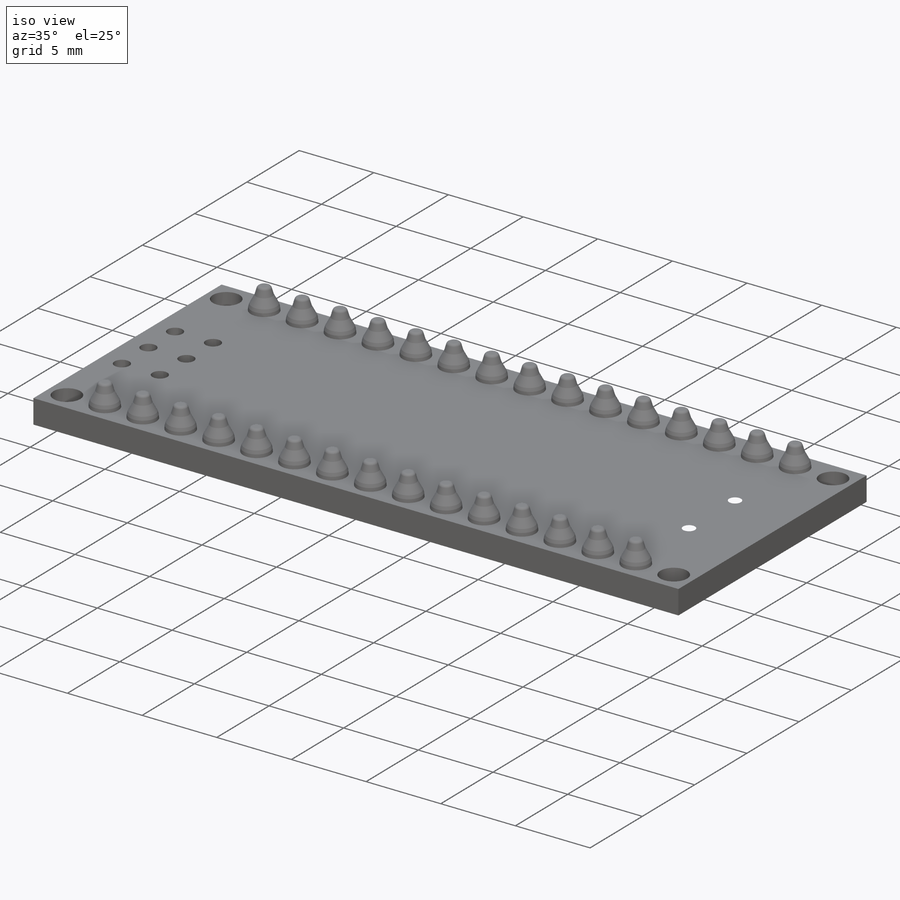
[diagram: iso view]
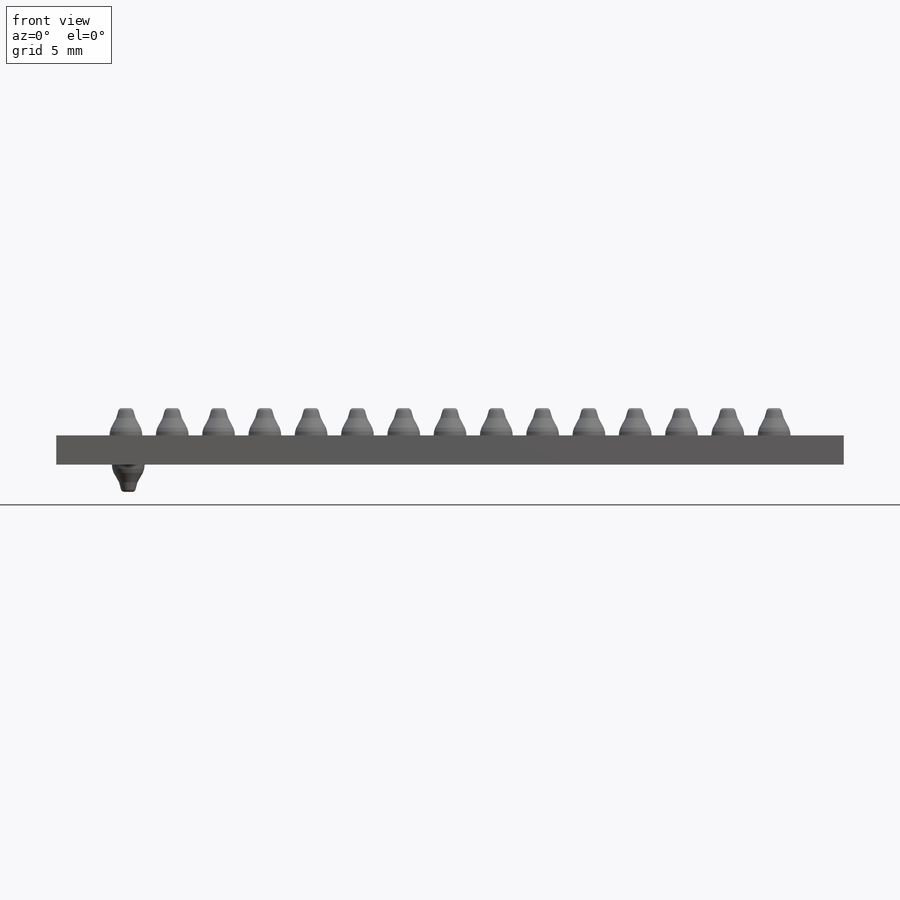
[diagram: front view]
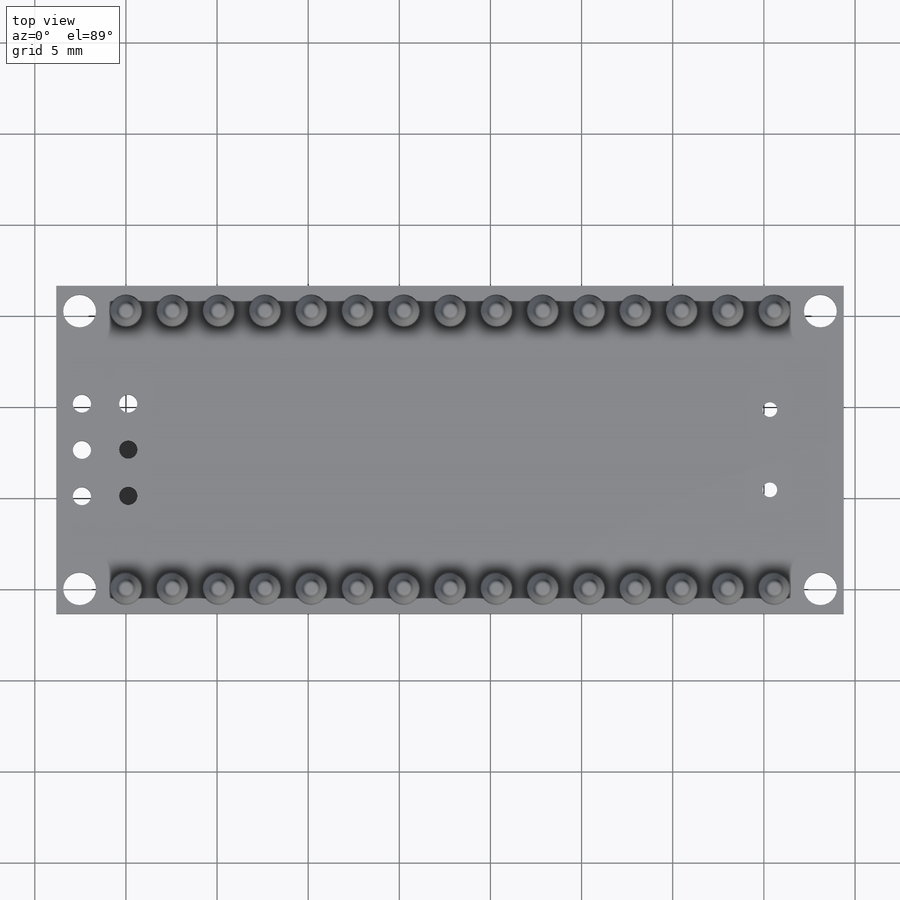
[diagram: top view]
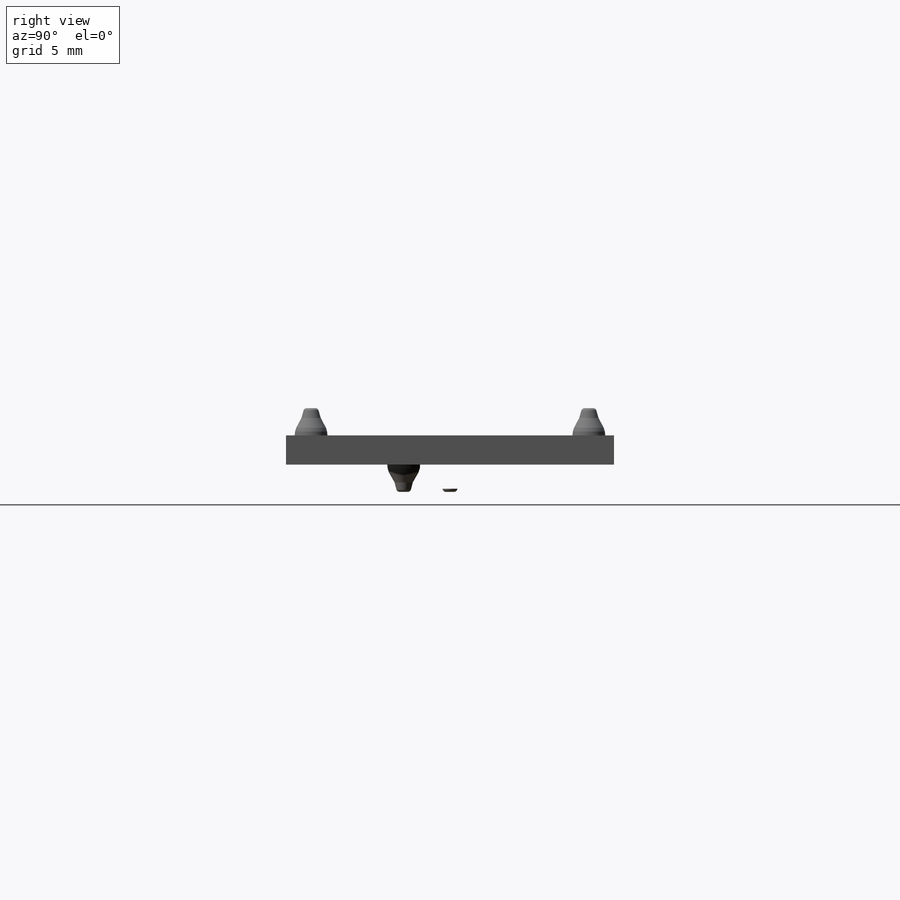
[diagram: right view]
SOLIDWORKS PART (.sldprt)
format: sldprt  version: not decoded by parser v0  size: 898,560 bytes
history: native  units: mm
features: sketch x9, cut_extrude x4, extrude x3, pattern_linear x3, revolve x2, material x1, plane x1 (+13 scaffold rows collapsed)
feature tree (36):
  scaffold x13  (default folders/planes/origin — collapsed)
  material  "E-Glass Fiber"
  sketch  "Sketch1"  dims[c1.D1=43.2mm c1.D2=18.0mm c1.D3=15.24mm c1.D4=35.56mm c1.D5=1.38mm c1.D6=43.2mm c2.D3=1.38mm c2.D6=15.24mm c3.D3=15.24mm]
  extrude  "Boss-Extrude2"  Depth=1.6mm
  sketch  "Sketch2"  dims[D1=0.9mm D2=15.24mm]
  cut_extrude  "Cut-Extrude2"  Depth=1.6mm
  pattern_linear  "LPattern1"  Count1=15 Count2=1 Spacing1=2.54mm Spacing2=10mm
  sketch  "Sketch3"  dims[c1.D1=1.0mm c1.D5=1.0mm c1.D2=2.54mm c1.D3=2.54mm c1.D4=2.54mm c2.D5=7.62mm c2.D6=2.54mm c2.D7=0.127mm]
  cut_extrude  "Cut-Extrude4"  Depth=1.6mm
  sketch  "Sketch4"  dims[D3=1.8mm D1=40.64mm D2=2.54mm D4=15.24mm D5=15.24mm]
  cut_extrude  "Cut-Extrude5"  Depth=1.6mm
  sketch  "Sketch5"  dims[D1=2.55mm D2=~2.381357mm]
  extrude  "Boss-Extrude3"  Depth=0.1mm
  sketch  "Sketch6"  dims[c1.D4=1.1mm c1.D5=1.9mm c1.D6=0.2mm c1.D1=1.5mm c1.D2=0.8mm c1.D3=1.8mm c2.D4=~0.894016mm]
  revolve  "Revolve1"  Angle=360deg
  pattern_linear  "LPattern2"  Count1=2 Count2=15 Spacing1=15.24mm Spacing2=2.54mm
  plane  "Plane3"  Offset=5.08mm
  sketch  "Sketch7"  dims[c1.D5=1.1mm c1.D6=0.2mm c1.D1=0.127mm c1.D2=1.5mm c1.D3=~0.234194mm c2.D3=90.0deg c3.D3=0.8mm c3.D4=1.8mm]
  revolve  "Revolve2"  Angle=360deg
  pattern_linear  "LPattern3"  Count1=2 Count2=3 Spacing1=2.54mm Spacing2=2.54mm
  sketch  "Sketch8"  dims[D1=2.55mm]
  extrude  "Boss-Extrude4"  Depth=0.1mm
  sketch  "Sketch9"  dims[c1.D1=0.8mm c1.D2=4.4mm c1.D3=4.4mm c2.D3=90.0deg c3.D3=5.42mm c3.D4=4.05mm]
  cut_extrude  "Cut-Extrude6"  Depth=10mm
decode coverage: 21 of 21 modeling features carry decoded parameters
note: ~ marks probable driven/reference dimensions
note: suppression state not decoded; provenance and decode notes live in map.json
